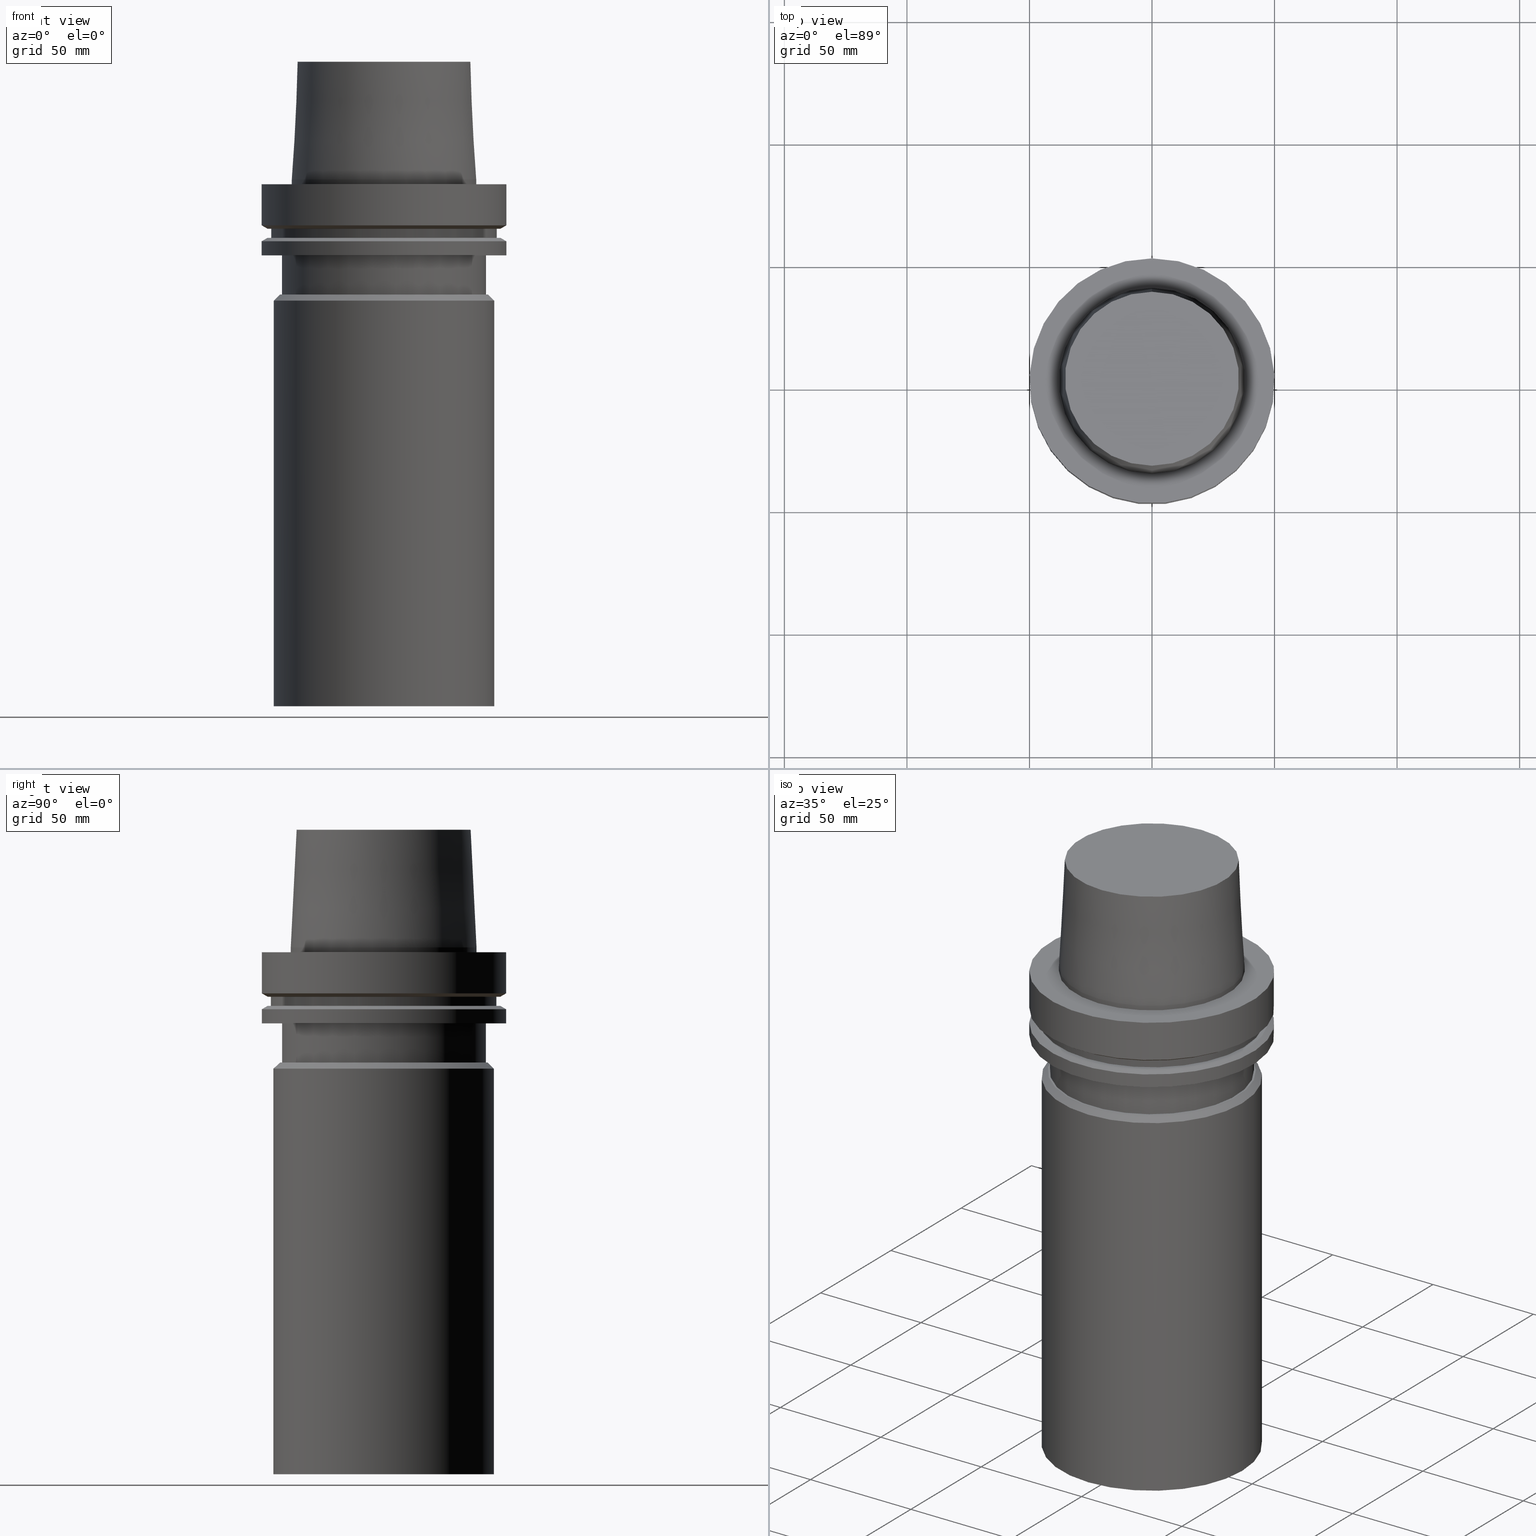
[diagram: canonical four-view strip — front | top / right | iso, engineering-drawing reading convention]
A machine part, canonical four-view strip (front | top / right | iso — engineering-drawing reading convention). The complete STEP part file that produces these views, byte-faithful:
ISO-10303-21;
HEADER;
FILE_DESCRIPTION((''),'1');
FILE_NAME('U:/Translate/00_BIG-HP\X2\FF71FF6FFF8CFF9F\X0\2013/\X2\30C030A630F330ED30FC30C930C730FC30BF\X0\/Vol9\X2\4EE5964D63B28F094E885B9A\X0\/20140930\X2\6DE18DEF628088533088308A\X0\/HSK-A100-CK/HSK-A100-CK7-213.stp','2014-09-30T09:25:11',(''),(''),'Spatial Interop R21 SP3','Kubotek KeyCreator 2011 V10.0.2 (22737)',' ');
FILE_SCHEMA(('automotive_design'));
ENDSEC;
DATA;
#1=MECHANICAL_DESIGN_GEOMETRIC_PRESENTATION_REPRESENTATION(' ',(#10,#11,#12,#13,#14,#15,#16,#17,#18,#19,#20,#21,#22,#23,#24,#25,#26,#27,#28,#29,#30,#31,#32,#33,#34,#35,#36,#37,#38,#39,#40,#41,#42,#43),#6);
#2=PRODUCT_DEFINITION_CONTEXT('',#44,'design');
#3=APPLICATION_PROTOCOL_DEFINITION('INTERNATIONAL STANDARD','automotive_design',1994,#44);
#4=PRODUCT_CATEGORY_RELATIONSHIP('NONE','NONE',#45,#46);
#5=SHAPE_DEFINITION_REPRESENTATION(#47,#48);
#6= (GEOMETRIC_REPRESENTATION_CONTEXT(3)GLOBAL_UNCERTAINTY_ASSIGNED_CONTEXT((#51))GLOBAL_UNIT_ASSIGNED_CONTEXT((#53,#54,#55))REPRESENTATION_CONTEXT('NONE','WORKSPACE'));
#10=STYLED_ITEM('',(#57),#58);
#11=STYLED_ITEM('',(#59),#60);
#12=STYLED_ITEM('',(#61,#62),#63);
#13=STYLED_ITEM('',(#64,#65),#66);
#14=STYLED_ITEM('',(#67,#68),#69);
#15=STYLED_ITEM('',(#70,#71),#72);
#16=STYLED_ITEM('',(#73,#74),#75);
#17=STYLED_ITEM('',(#76),#77);
#18=STYLED_ITEM('',(#78,#79),#80);
#19=STYLED_ITEM('',(#81,#82),#83);
#20=STYLED_ITEM('',(#84),#85);
#21=STYLED_ITEM('',(#86,#87),#88);
#22=STYLED_ITEM('',(#89),#90);
#23=STYLED_ITEM('',(#91),#92);
#24=STYLED_ITEM('',(#93),#94);
#25=STYLED_ITEM('',(#95),#96);
#26=STYLED_ITEM('',(#97,#98),#99);
#27=STYLED_ITEM('',(#100,#101),#102);
#28=STYLED_ITEM('',(#103),#104);
#29=STYLED_ITEM('',(#105,#106),#107);
#30=STYLED_ITEM('',(#108,#109),#110);
#31=STYLED_ITEM('',(#111,#112),#113);
#32=STYLED_ITEM('',(#114),#115);
#33=STYLED_ITEM('',(#116),#117);
#34=STYLED_ITEM('',(#118),#119);
#35=STYLED_ITEM('',(#120,#121),#122);
#36=STYLED_ITEM('',(#123),#124);
#37=STYLED_ITEM('',(#125),#126);
#38=STYLED_ITEM('',(#127,#128),#129);
#39=STYLED_ITEM('',(#130,#131),#132);
#40=STYLED_ITEM('',(#133,#134),#135);
#41=STYLED_ITEM('',(#136),#137);
#42=STYLED_ITEM('',(#138),#139);
#43=STYLED_ITEM('',(#140,#141),#142);
#44=APPLICATION_CONTEXT(' ');
#45=PRODUCT_CATEGORY('part','NONE');
#46=PRODUCT_RELATED_PRODUCT_CATEGORY('detail',' ',(#143));
#47=PRODUCT_DEFINITION_SHAPE('NONE','NONE',#144);
#48=ADVANCED_BREP_SHAPE_REPRESENTATION('Unnamed[1]',(#107,#145),#6);
#51=UNCERTAINTY_MEASURE_WITH_UNIT(LENGTH_MEASURE(1.0E-006),#53,'','');
#53= (CONVERSION_BASED_UNIT('MILLIMETRE',#148)LENGTH_UNIT()NAMED_UNIT(#151));
#54= (NAMED_UNIT(#153)PLANE_ANGLE_UNIT()SI_UNIT($,.RADIAN.));
#55= (NAMED_UNIT(#153)SOLID_ANGLE_UNIT()SI_UNIT($,.STERADIAN.));
#57=PRESENTATION_STYLE_ASSIGNMENT((#159));
#58=EDGE_CURVE('Unnamed[1]',#160,#160,#161,.T.);
#59=PRESENTATION_STYLE_ASSIGNMENT((#162));
#60=EDGE_CURVE('Unnamed[1]',#163,#163,#164,.T.);
#61=PRESENTATION_STYLE_ASSIGNMENT((#165));
#62=PRESENTATION_STYLE_ASSIGNMENT((#166));
#63=ADVANCED_FACE('Unnamed[1]',(#167,#168),#169,.T.);
#64=PRESENTATION_STYLE_ASSIGNMENT((#170));
#65=PRESENTATION_STYLE_ASSIGNMENT((#171));
#66=ADVANCED_FACE('Unnamed[1]',(#172,#173),#174,.T.);
#67=PRESENTATION_STYLE_ASSIGNMENT((#175));
#68=PRESENTATION_STYLE_ASSIGNMENT((#176));
#69=ADVANCED_FACE('Unnamed[1]',(#177,#178),#179,.T.);
#70=PRESENTATION_STYLE_ASSIGNMENT((#180));
#71=PRESENTATION_STYLE_ASSIGNMENT((#181));
#72=ADVANCED_FACE('Unnamed[1]',(#182,#183),#184,.T.);
#73=PRESENTATION_STYLE_ASSIGNMENT((#185));
#74=PRESENTATION_STYLE_ASSIGNMENT((#186));
#75=ADVANCED_FACE('Unnamed[1]',(#187,#188),#189,.T.);
#76=PRESENTATION_STYLE_ASSIGNMENT((#190));
#77=EDGE_CURVE('Unnamed[1]',#191,#191,#192,.T.);
#78=PRESENTATION_STYLE_ASSIGNMENT((#193));
#79=PRESENTATION_STYLE_ASSIGNMENT((#194));
#80=ADVANCED_FACE('Unnamed[1]',(#195),#196,.T.);
#81=PRESENTATION_STYLE_ASSIGNMENT((#197));
#82=PRESENTATION_STYLE_ASSIGNMENT((#198));
#83=ADVANCED_FACE('Unnamed[1]',(#199,#200),#201,.T.);
#84=PRESENTATION_STYLE_ASSIGNMENT((#202));
#85=EDGE_CURVE('Unnamed[1]',#203,#203,#204,.T.);
#86=PRESENTATION_STYLE_ASSIGNMENT((#205));
#87=PRESENTATION_STYLE_ASSIGNMENT((#206));
#88=ADVANCED_FACE('Unnamed[1]',(#207),#208,.T.);
#89=PRESENTATION_STYLE_ASSIGNMENT((#209));
#90=EDGE_CURVE('Unnamed[1]',#210,#210,#211,.T.);
#91=PRESENTATION_STYLE_ASSIGNMENT((#212));
#92=EDGE_CURVE('Unnamed[1]',#213,#213,#214,.T.);
#93=PRESENTATION_STYLE_ASSIGNMENT((#215));
#94=EDGE_CURVE('Unnamed[1]',#216,#216,#217,.T.);
#95=PRESENTATION_STYLE_ASSIGNMENT((#218));
#96=EDGE_CURVE('Unnamed[1]',#219,#219,#220,.T.);
#97=PRESENTATION_STYLE_ASSIGNMENT((#221));
#98=PRESENTATION_STYLE_ASSIGNMENT((#222));
#99=ADVANCED_FACE('Unnamed[1]',(#223,#224),#225,.T.);
#100=PRESENTATION_STYLE_ASSIGNMENT((#226));
#101=PRESENTATION_STYLE_ASSIGNMENT((#227));
#102=ADVANCED_FACE('Unnamed[1]',(#228,#229),#230,.T.);
#103=PRESENTATION_STYLE_ASSIGNMENT((#231));
#104=EDGE_CURVE('Unnamed[1]',#232,#232,#233,.T.);
#105=PRESENTATION_STYLE_ASSIGNMENT((#234));
#106=PRESENTATION_STYLE_ASSIGNMENT((#235));
#107=MANIFOLD_SOLID_BREP('Unnamed[1]',#236);
#108=PRESENTATION_STYLE_ASSIGNMENT((#237));
#109=PRESENTATION_STYLE_ASSIGNMENT((#238));
#110=ADVANCED_FACE('Unnamed[1]',(#239,#240),#241,.T.);
#111=PRESENTATION_STYLE_ASSIGNMENT((#242));
#112=PRESENTATION_STYLE_ASSIGNMENT((#243));
#113=ADVANCED_FACE('Unnamed[1]',(#244,#245),#246,.T.);
#114=PRESENTATION_STYLE_ASSIGNMENT((#247));
#115=EDGE_CURVE('Unnamed[1]',#248,#248,#249,.T.);
#116=PRESENTATION_STYLE_ASSIGNMENT((#250));
#117=EDGE_CURVE('Unnamed[1]',#251,#251,#252,.T.);
#118=PRESENTATION_STYLE_ASSIGNMENT((#253));
#119=EDGE_CURVE('Unnamed[1]',#254,#254,#255,.T.);
#120=PRESENTATION_STYLE_ASSIGNMENT((#256));
#121=PRESENTATION_STYLE_ASSIGNMENT((#257));
#122=ADVANCED_FACE('Unnamed[1]',(#258,#259),#260,.T.);
#123=PRESENTATION_STYLE_ASSIGNMENT((#261));
#124=EDGE_CURVE('Unnamed[1]',#262,#262,#263,.T.);
#125=PRESENTATION_STYLE_ASSIGNMENT((#264));
#126=EDGE_CURVE('Unnamed[1]',#265,#265,#266,.T.);
#127=PRESENTATION_STYLE_ASSIGNMENT((#267));
#128=PRESENTATION_STYLE_ASSIGNMENT((#268));
#129=ADVANCED_FACE('Unnamed[1]',(#269,#270),#271,.T.);
#130=PRESENTATION_STYLE_ASSIGNMENT((#272));
#131=PRESENTATION_STYLE_ASSIGNMENT((#273));
#132=ADVANCED_FACE('Unnamed[1]',(#274,#275),#276,.T.);
#133=PRESENTATION_STYLE_ASSIGNMENT((#277));
#134=PRESENTATION_STYLE_ASSIGNMENT((#278));
#135=ADVANCED_FACE('Unnamed[1]',(#279,#280),#281,.T.);
#136=PRESENTATION_STYLE_ASSIGNMENT((#282));
#137=EDGE_CURVE('Unnamed[1]',#283,#283,#284,.T.);
#138=PRESENTATION_STYLE_ASSIGNMENT((#285));
#139=EDGE_CURVE('Unnamed[1]',#286,#286,#287,.T.);
#140=PRESENTATION_STYLE_ASSIGNMENT((#288));
#141=PRESENTATION_STYLE_ASSIGNMENT((#289));
#142=ADVANCED_FACE('Unnamed[1]',(#290,#291),#292,.T.);
#143=PRODUCT('Unnamed[1]','Unnamed[1]','PART-Unnamed[1]-DESC',(#293));
#144=PRODUCT_DEFINITION('NONE','NONE',#294,#2);
#145=AXIS2_PLACEMENT_3D('',#295,#296,#297);
#148=LENGTH_MEASURE_WITH_UNIT(LENGTH_MEASURE(1.0),#298);
#151=DIMENSIONAL_EXPONENTS(1.0,0.0,0.0,0.0,0.0,0.0,0.0);
#153=DIMENSIONAL_EXPONENTS(0.0,0.0,0.0,0.0,0.0,0.0,0.0);
#159=CURVE_STYLE('',#299,POSITIVE_LENGTH_MEASURE(1000.0),#300);
#160=VERTEX_POINT('',#301);
#161=CIRCLE('',#302,37.9);
#162=CURVE_STYLE('',#303,POSITIVE_LENGTH_MEASURE(1000.0),#304);
#163=VERTEX_POINT('',#305);
#164=CIRCLE('',#306,41.7010315672632);
#165=SURFACE_STYLE_USAGE(.BOTH.,#307);
#166=CURVE_STYLE('',#308,POSITIVE_LENGTH_MEASURE(1000.0),#309);
#167=FACE_BOUND('',#310,.T.);
#168=FACE_BOUND('',#311,.T.);
#169=CYLINDRICAL_SURFACE('',#312,50.0);
#170=SURFACE_STYLE_USAGE(.BOTH.,#313);
#171=CURVE_STYLE('',#314,POSITIVE_LENGTH_MEASURE(1000.0),#315);
#172=FACE_BOUND('',#316,.T.);
#173=FACE_BOUND('',#317,.T.);
#174=CYLINDRICAL_SURFACE('',#318,50.0);
#175=SURFACE_STYLE_USAGE(.BOTH.,#319);
#176=CURVE_STYLE('',#320,POSITIVE_LENGTH_MEASURE(1000.0),#321);
#177=FACE_BOUND('',#322,.T.);
#178=FACE_BOUND('',#323,.T.);
#179=CYLINDRICAL_SURFACE('',#324,45.0);
#180=SURFACE_STYLE_USAGE(.BOTH.,#325);
#181=CURVE_STYLE('',#326,POSITIVE_LENGTH_MEASURE(1000.0),#327);
#182=FACE_BOUND('',#328,.T.);
#183=FACE_OUTER_BOUND('',#329,.T.);
#184=PLANE('',#330);
#185=SURFACE_STYLE_USAGE(.BOTH.,#331);
#186=CURVE_STYLE('',#332,POSITIVE_LENGTH_MEASURE(1000.0),#333);
#187=FACE_BOUND('',#334,.T.);
#188=FACE_BOUND('',#335,.T.);
#189=CONICAL_SURFACE('',#336,43.75,0.785398163397433);
#190=CURVE_STYLE('',#337,POSITIVE_LENGTH_MEASURE(1000.0),#338);
#191=VERTEX_POINT('',#339);
#192=CIRCLE('',#340,46.0);
#193=SURFACE_STYLE_USAGE(.BOTH.,#341);
#194=CURVE_STYLE('',#342,POSITIVE_LENGTH_MEASURE(1000.0),#343);
#195=FACE_OUTER_BOUND('',#344,.T.);
#196=PLANE('',#345);
#197=SURFACE_STYLE_USAGE(.BOTH.,#346);
#198=CURVE_STYLE('',#347,POSITIVE_LENGTH_MEASURE(1000.0),#348);
#199=FACE_BOUND('',#349,.T.);
#200=FACE_BOUND('',#350,.T.);
#201=CYLINDRICAL_SURFACE('',#351,41.7010315672632);
#202=CURVE_STYLE('',#352,POSITIVE_LENGTH_MEASURE(1000.0),#353);
#203=VERTEX_POINT('',#354);
#204=CIRCLE('',#355,45.0);
#205=SURFACE_STYLE_USAGE(.BOTH.,#356);
#206=CURVE_STYLE('',#357,POSITIVE_LENGTH_MEASURE(1000.0),#358);
#207=FACE_OUTER_BOUND('',#359,.T.);
#208=PLANE('',#360);
#209=CURVE_STYLE('',#361,POSITIVE_LENGTH_MEASURE(1000.0),#362);
#210=VERTEX_POINT('',#363);
#211=CIRCLE('',#364,45.0);
#212=CURVE_STYLE('',#365,POSITIVE_LENGTH_MEASURE(1000.0),#366);
#213=VERTEX_POINT('',#367);
#214=CIRCLE('',#368,37.9);
#215=CURVE_STYLE('',#369,POSITIVE_LENGTH_MEASURE(1000.0),#370);
#216=VERTEX_POINT('',#371);
#217=CIRCLE('',#372,47.62259526);
#218=CURVE_STYLE('',#373,POSITIVE_LENGTH_MEASURE(1000.0),#374);
#219=VERTEX_POINT('',#375);
#220=CIRCLE('',#376,50.0);
#221=SURFACE_STYLE_USAGE(.BOTH.,#377);
#222=CURVE_STYLE('',#378,POSITIVE_LENGTH_MEASURE(1000.0),#379);
#223=FACE_OUTER_BOUND('',#380,.T.);
#224=FACE_BOUND('',#381,.T.);
#225=PLANE('',#382);
#226=SURFACE_STYLE_USAGE(.BOTH.,#383);
#227=CURVE_STYLE('',#384,POSITIVE_LENGTH_MEASURE(1000.0),#385);
#228=FACE_OUTER_BOUND('',#386,.T.);
#229=FACE_BOUND('',#387,.T.);
#230=PLANE('',#388);
#231=CURVE_STYLE('',#389,POSITIVE_LENGTH_MEASURE(1000.0),#390);
#232=VERTEX_POINT('',#391);
#233=CIRCLE('',#392,50.0);
#234=SURFACE_STYLE_USAGE(.BOTH.,#393);
#235=CURVE_STYLE('',#394,POSITIVE_LENGTH_MEASURE(1000.0),#395);
#236=CLOSED_SHELL('',(#88,#142,#113,#122,#63,#129,#135,#110,#102,#132,#66,#72,#83,#99,#75,#69,#80));
#237=SURFACE_STYLE_USAGE(.BOTH.,#396);
#238=CURVE_STYLE('',#397,POSITIVE_LENGTH_MEASURE(1000.0),#398);
#239=FACE_BOUND('',#399,.T.);
#240=FACE_BOUND('',#400,.T.);
#241=CYLINDRICAL_SURFACE('',#401,46.0);
#242=SURFACE_STYLE_USAGE(.BOTH.,#402);
#243=CURVE_STYLE('',#403,POSITIVE_LENGTH_MEASURE(1000.0),#404);
#244=FACE_BOUND('',#405,.T.);
#245=FACE_BOUND('',#406,.T.);
#246=CYLINDRICAL_SURFACE('',#407,37.9);
#247=CURVE_STYLE('',#408,POSITIVE_LENGTH_MEASURE(1000.0),#409);
#248=VERTEX_POINT('',#410);
#249=CIRCLE('',#411,46.0);
#250=CURVE_STYLE('',#412,POSITIVE_LENGTH_MEASURE(1000.0),#413);
#251=VERTEX_POINT('',#414);
#252=CIRCLE('',#415,47.62259526);
#253=CURVE_STYLE('',#416,POSITIVE_LENGTH_MEASURE(1000.0),#417);
#254=VERTEX_POINT('',#418);
#255=CIRCLE('',#419,41.7010315672632);
#256=SURFACE_STYLE_USAGE(.BOTH.,#420);
#257=CURVE_STYLE('',#421,POSITIVE_LENGTH_MEASURE(1000.0),#422);
#258=FACE_OUTER_BOUND('',#423,.T.);
#259=FACE_BOUND('',#424,.T.);
#260=PLANE('',#425);
#261=CURVE_STYLE('',#426,POSITIVE_LENGTH_MEASURE(1000.0),#427);
#262=VERTEX_POINT('',#428);
#263=CIRCLE('',#429,42.5);
#264=CURVE_STYLE('',#430,POSITIVE_LENGTH_MEASURE(1000.0),#431);
#265=VERTEX_POINT('',#432);
#266=CIRCLE('',#433,35.5000000015618);
#267=SURFACE_STYLE_USAGE(.BOTH.,#434);
#268=CURVE_STYLE('',#435,POSITIVE_LENGTH_MEASURE(1000.0),#436);
#269=FACE_BOUND('',#437,.T.);
#270=FACE_BOUND('',#438,.T.);
#271=CONICAL_SURFACE('',#439,48.81129763,1.04719755328239);
#272=SURFACE_STYLE_USAGE(.BOTH.,#440);
#273=CURVE_STYLE('',#441,POSITIVE_LENGTH_MEASURE(1000.0),#442);
#274=FACE_BOUND('',#443,.T.);
#275=FACE_BOUND('',#444,.T.);
#276=CONICAL_SURFACE('',#445,48.81129763,1.04719755328239);
#277=SURFACE_STYLE_USAGE(.BOTH.,#446);
#278=CURVE_STYLE('',#447,POSITIVE_LENGTH_MEASURE(1000.0),#448);
#279=FACE_BOUND('',#449,.T.);
#280=FACE_OUTER_BOUND('',#450,.T.);
#281=PLANE('',#451);
#282=CURVE_STYLE('',#452,POSITIVE_LENGTH_MEASURE(1000.0),#453);
#283=VERTEX_POINT('',#454);
#284=CIRCLE('',#455,50.0);
#285=CURVE_STYLE('',#456,POSITIVE_LENGTH_MEASURE(1000.0),#457);
#286=VERTEX_POINT('',#458);
#287=CIRCLE('',#459,50.0);
#288=SURFACE_STYLE_USAGE(.BOTH.,#460);
#289=CURVE_STYLE('',#461,POSITIVE_LENGTH_MEASURE(1000.0),#462);
#290=FACE_BOUND('',#463,.T.);
#291=FACE_BOUND('',#464,.T.);
#292=CONICAL_SURFACE('',#465,36.7000000007809,0.0499583956894865);
#293=PRODUCT_CONTEXT('',#44,'mechanical');
#294=PRODUCT_DEFINITION_FORMATION_WITH_SPECIFIED_SOURCE(' ','NONE',#143,.NOT_KNOWN.);
#295=CARTESIAN_POINT('',(0.0,0.0,0.0));
#296=DIRECTION('',(0.0,0.0,1.0));
#297=DIRECTION('',(1.0,0.0,0.0));
#298= (NAMED_UNIT(#151)LENGTH_UNIT()SI_UNIT(.MILLI.,.METRE.));
#299=DRAUGHTING_PRE_DEFINED_CURVE_FONT('continuous');
#300=COLOUR_RGB('',0.0,1.0,0.0);
#301=CARTESIAN_POINT('',(-4.67153567310568E-031,37.9,4.64141136876847E-015));
#302=AXIS2_PLACEMENT_3D('',#467,#468,#469);
#303=DRAUGHTING_PRE_DEFINED_CURVE_FONT('continuous');
#304=COLOUR_RGB('',0.0,1.0,0.0);
#305=CARTESIAN_POINT('',(1.77573785876366E-015,41.7010315672632,-29.0));
#306=AXIS2_PLACEMENT_3D('',#470,#471,#472);
#307=SURFACE_SIDE_STYLE('',(#473));
#308=DRAUGHTING_PRE_DEFINED_CURVE_FONT('continuous');
#309=COLOUR_RGB('',0.0,1.0,0.0);
#310=EDGE_LOOP('',(#474));
#311=EDGE_LOOP('',(#475));
#312=AXIS2_PLACEMENT_3D('',#476,#477,#478);
#313=SURFACE_SIDE_STYLE('',(#479));
#314=DRAUGHTING_PRE_DEFINED_CURVE_FONT('continuous');
#315=COLOUR_RGB('',0.0,1.0,0.0);
#316=EDGE_LOOP('',(#480));
#317=EDGE_LOOP('',(#481));
#318=AXIS2_PLACEMENT_3D('',#482,#483,#484);
#319=SURFACE_SIDE_STYLE('',(#485));
#320=DRAUGHTING_PRE_DEFINED_CURVE_FONT('continuous');
#321=COLOUR_RGB('',0.0,1.0,0.0);
#322=EDGE_LOOP('',(#486));
#323=EDGE_LOOP('',(#487));
#324=AXIS2_PLACEMENT_3D('',#488,#489,#490);
#325=SURFACE_SIDE_STYLE('',(#491));
#326=DRAUGHTING_PRE_DEFINED_CURVE_FONT('continuous');
#327=COLOUR_RGB('',0.0,1.0,0.0);
#328=EDGE_LOOP('',(#492));
#329=EDGE_LOOP('',(#493));
#330=AXIS2_PLACEMENT_3D('',#494,#495,#496);
#331=SURFACE_SIDE_STYLE('',(#497));
#332=DRAUGHTING_PRE_DEFINED_CURVE_FONT('continuous');
#333=COLOUR_RGB('',0.0,1.0,0.0);
#334=EDGE_LOOP('',(#498));
#335=EDGE_LOOP('',(#499));
#336=AXIS2_PLACEMENT_3D('',#500,#501,#502);
#337=DRAUGHTING_PRE_DEFINED_CURVE_FONT('continuous');
#338=COLOUR_RGB('',0.0,1.0,0.0);
#339=CARTESIAN_POINT('',(1.10983616172729E-015,46.0,-18.125));
#340=AXIS2_PLACEMENT_3D('',#503,#504,#505);
#341=SURFACE_SIDE_STYLE('',(#506));
#342=DRAUGHTING_PRE_DEFINED_CURVE_FONT('continuous');
#343=COLOUR_RGB('',0.0,1.0,0.0);
#344=EDGE_LOOP('',(#507));
#345=AXIS2_PLACEMENT_3D('',#508,#509,#510);
#346=SURFACE_SIDE_STYLE('',(#511));
#347=DRAUGHTING_PRE_DEFINED_CURVE_FONT('continuous');
#348=COLOUR_RGB('',0.0,1.0,0.0);
#349=EDGE_LOOP('',(#512));
#350=EDGE_LOOP('',(#513));
#351=AXIS2_PLACEMENT_3D('',#514,#515,#516);
#352=DRAUGHTING_PRE_DEFINED_CURVE_FONT('continuous');
#353=COLOUR_RGB('',0.0,1.0,0.0);
#354=CARTESIAN_POINT('',(1.30424884109193E-014,45.0,-213.0));
#355=AXIS2_PLACEMENT_3D('',#517,#518,#519);
#356=SURFACE_SIDE_STYLE('',(#520));
#357=DRAUGHTING_PRE_DEFINED_CURVE_FONT('continuous');
#358=COLOUR_RGB('',0.0,1.0,0.0);
#359=EDGE_LOOP('',(#521));
#360=AXIS2_PLACEMENT_3D('',#522,#523,#524);
#361=DRAUGHTING_PRE_DEFINED_CURVE_FONT('continuous');
#362=COLOUR_RGB('',0.0,1.0,0.0);
#363=CARTESIAN_POINT('',(2.90853614797497E-015,45.0,-47.5000000000001));
#364=AXIS2_PLACEMENT_3D('',#525,#526,#527);
#365=DRAUGHTING_PRE_DEFINED_CURVE_FONT('continuous');
#366=COLOUR_RGB('',0.0,1.0,0.0);
#367=CARTESIAN_POINT('',(-1.22464679914736E-016,37.9,2.0));
#368=AXIS2_PLACEMENT_3D('',#528,#529,#530);
#369=DRAUGHTING_PRE_DEFINED_CURVE_FONT('continuous');
#370=COLOUR_RGB('',0.0,1.0,0.0);
#371=CARTESIAN_POINT('',(1.33945743656742E-015,47.62259526,-21.875));
#372=AXIS2_PLACEMENT_3D('',#531,#532,#533);
#373=DRAUGHTING_PRE_DEFINED_CURVE_FONT('continuous');
#374=COLOUR_RGB('',0.0,1.0,0.0);
#375=CARTESIAN_POINT('',(-6.16297582203915E-031,50.0,6.12323399573676E-015));
#376=AXIS2_PLACEMENT_3D('',#534,#535,#536);
#377=SURFACE_SIDE_STYLE('',(#537));
#378=DRAUGHTING_PRE_DEFINED_CURVE_FONT('continuous');
#379=COLOUR_RGB('',0.0,1.0,0.0);
#380=EDGE_LOOP('',(#538));
#381=EDGE_LOOP('',(#539));
#382=AXIS2_PLACEMENT_3D('',#540,#541,#542);
#383=SURFACE_SIDE_STYLE('',(#543));
#384=DRAUGHTING_PRE_DEFINED_CURVE_FONT('continuous');
#385=COLOUR_RGB('',0.0,1.0,0.0);
#386=EDGE_LOOP('',(#544));
#387=EDGE_LOOP('',(#545));
#388=AXIS2_PLACEMENT_3D('',#546,#547,#548);
#389=DRAUGHTING_PRE_DEFINED_CURVE_FONT('continuous');
#390=COLOUR_RGB('',0.0,1.0,0.0);
#391=CARTESIAN_POINT('',(1.42350465615161E-015,50.0,-23.24759526));
#392=AXIS2_PLACEMENT_3D('',#549,#550,#551);
#393=SURFACE_SIDE_STYLE('',(#552));
#394=DRAUGHTING_PRE_DEFINED_CURVE_FONT('continuous');
#395=COLOUR_RGB('',0.0,1.0,0.0);
#396=SURFACE_SIDE_STYLE('',(#553));
#397=DRAUGHTING_PRE_DEFINED_CURVE_FONT('continuous');
#398=COLOUR_RGB('',0.0,1.0,0.0);
#399=EDGE_LOOP('',(#554));
#400=EDGE_LOOP('',(#555));
#401=AXIS2_PLACEMENT_3D('',#556,#557,#558);
#402=SURFACE_SIDE_STYLE('',(#559));
#403=DRAUGHTING_PRE_DEFINED_CURVE_FONT('continuous');
#404=COLOUR_RGB('',0.0,1.0,0.0);
#405=EDGE_LOOP('',(#560));
#406=EDGE_LOOP('',(#561));
#407=AXIS2_PLACEMENT_3D('',#562,#563,#564);
#408=DRAUGHTING_PRE_DEFINED_CURVE_FONT('continuous');
#409=COLOUR_RGB('',0.0,1.0,0.0);
#410=CARTESIAN_POINT('',(1.33945743656742E-015,46.0,-21.875));
#411=AXIS2_PLACEMENT_3D('',#565,#566,#567);
#412=DRAUGHTING_PRE_DEFINED_CURVE_FONT('continuous');
#413=COLOUR_RGB('',0.0,1.0,0.0);
#414=CARTESIAN_POINT('',(1.10983616172729E-015,47.62259526,-18.125));
#415=AXIS2_PLACEMENT_3D('',#568,#569,#570);
#416=DRAUGHTING_PRE_DEFINED_CURVE_FONT('continuous');
#417=COLOUR_RGB('',0.0,1.0,0.0);
#418=CARTESIAN_POINT('',(2.75545529808154E-015,41.7010315672632,-45.0));
#419=AXIS2_PLACEMENT_3D('',#571,#572,#573);
#420=SURFACE_SIDE_STYLE('',(#574));
#421=DRAUGHTING_PRE_DEFINED_CURVE_FONT('continuous');
#422=COLOUR_RGB('',0.0,1.0,0.0);
#423=EDGE_LOOP('',(#575));
#424=EDGE_LOOP('',(#576));
#425=AXIS2_PLACEMENT_3D('',#577,#578,#579);
#426=DRAUGHTING_PRE_DEFINED_CURVE_FONT('continuous');
#427=COLOUR_RGB('',0.0,1.0,0.0);
#428=CARTESIAN_POINT('',(2.75545529808154E-015,42.5,-45.0));
#429=AXIS2_PLACEMENT_3D('',#580,#581,#582);
#430=DRAUGHTING_PRE_DEFINED_CURVE_FONT('continuous');
#431=COLOUR_RGB('',0.0,1.0,0.0);
#432=CARTESIAN_POINT('',(-3.06161699786838E-015,35.5000000015618,50.0));
#433=AXIS2_PLACEMENT_3D('',#583,#584,#585);
#434=SURFACE_SIDE_STYLE('',(#586));
#435=DRAUGHTING_PRE_DEFINED_CURVE_FONT('continuous');
#436=COLOUR_RGB('',0.0,1.0,0.0);
#437=EDGE_LOOP('',(#587));
#438=EDGE_LOOP('',(#588));
#439=AXIS2_PLACEMENT_3D('',#589,#590,#591);
#440=SURFACE_SIDE_STYLE('',(#592));
#441=DRAUGHTING_PRE_DEFINED_CURVE_FONT('continuous');
#442=COLOUR_RGB('',0.0,1.0,0.0);
#443=EDGE_LOOP('',(#593));
#444=EDGE_LOOP('',(#594));
#445=AXIS2_PLACEMENT_3D('',#595,#596,#597);
#446=SURFACE_SIDE_STYLE('',(#598));
#447=DRAUGHTING_PRE_DEFINED_CURVE_FONT('continuous');
#448=COLOUR_RGB('',0.0,1.0,0.0);
#449=EDGE_LOOP('',(#599));
#450=EDGE_LOOP('',(#600));
#451=AXIS2_PLACEMENT_3D('',#601,#602,#603);
#452=DRAUGHTING_PRE_DEFINED_CURVE_FONT('continuous');
#453=COLOUR_RGB('',0.0,1.0,0.0);
#454=CARTESIAN_POINT('',(1.0257889421431E-015,50.0,-16.75240474));
#455=AXIS2_PLACEMENT_3D('',#604,#605,#606);
#456=DRAUGHTING_PRE_DEFINED_CURVE_FONT('continuous');
#457=COLOUR_RGB('',0.0,1.0,0.0);
#458=CARTESIAN_POINT('',(1.77573785876366E-015,50.0,-29.0));
#459=AXIS2_PLACEMENT_3D('',#607,#608,#609);
#460=SURFACE_SIDE_STYLE('',(#610));
#461=DRAUGHTING_PRE_DEFINED_CURVE_FONT('continuous');
#462=COLOUR_RGB('',0.0,1.0,0.0);
#463=EDGE_LOOP('',(#611));
#464=EDGE_LOOP('',(#612));
#465=AXIS2_PLACEMENT_3D('',#613,#614,#615);
#467=CARTESIAN_POINT('',(0.0,0.0,0.0));
#468=DIRECTION('',(6.12323399573677E-017,1.22464679914735E-016,-1.0));
#469=DIRECTION('',(-1.23259516440783E-032,1.0,1.22464679914735E-016));
#470=CARTESIAN_POINT('',(1.77573785876366E-015,3.55147571752732E-015,-29.0));
#471=DIRECTION('',(6.12323399573677E-017,1.22464679914735E-016,-1.0));
#472=DIRECTION('',(-1.23259516440783E-032,1.0,1.22464679914735E-016));
#473=SURFACE_STYLE_FILL_AREA(#616);
#474=ORIENTED_EDGE('',*,*,#137,.F.);
#475=ORIENTED_EDGE('',*,*,#96,.T.);
#476=CARTESIAN_POINT('',(5.12894471071548E-016,1.0257889421431E-015,-8.37620236999999));
#477=DIRECTION('',(6.12323399573677E-017,1.22464679914735E-016,-1.0));
#478=DIRECTION('',(-1.23259516440783E-032,1.0,1.22464679914735E-016));
#479=SURFACE_STYLE_FILL_AREA(#617);
#480=ORIENTED_EDGE('',*,*,#139,.F.);
#481=ORIENTED_EDGE('',*,*,#104,.T.);
#482=CARTESIAN_POINT('',(1.59962125745764E-015,3.19924251491527E-015,-26.12379763));
#483=DIRECTION('',(6.12323399573677E-017,1.22464679914735E-016,-1.0));
#484=DIRECTION('',(-1.23259516440783E-032,1.0,1.22464679914735E-016));
#485=SURFACE_STYLE_FILL_AREA(#618);
#486=ORIENTED_EDGE('',*,*,#85,.F.);
#487=ORIENTED_EDGE('',*,*,#90,.T.);
#488=CARTESIAN_POINT('',(7.97551227944714E-015,1.59510245588943E-014,-130.25));
#489=DIRECTION('',(6.12323399573677E-017,1.22464679914735E-016,-1.0));
#490=DIRECTION('',(-1.23259516440783E-032,1.0,1.22464679914735E-016));
#491=SURFACE_STYLE_FILL_AREA(#619);
#492=ORIENTED_EDGE('',*,*,#60,.F.);
#493=ORIENTED_EDGE('',*,*,#139,.T.);
#494=CARTESIAN_POINT('',(1.77573785876366E-015,45.8505157836316,-29.0));
#495=DIRECTION('',(6.12323399573677E-017,1.40673767393631E-015,-1.0));
#496=DIRECTION('',(-9.09649922120739E-032,1.0,1.40673767393631E-015));
#497=SURFACE_STYLE_FILL_AREA(#620);
#498=ORIENTED_EDGE('',*,*,#90,.F.);
#499=ORIENTED_EDGE('',*,*,#124,.T.);
#500=CARTESIAN_POINT('',(2.83199572302826E-015,5.66399144605651E-015,-46.25));
#501=DIRECTION('',(6.12323399573677E-017,1.22464679914735E-016,-1.0));
#502=DIRECTION('',(-1.23259516440783E-032,1.0,1.22464679914735E-016));
#503=CARTESIAN_POINT('',(1.10983616172729E-015,2.21967232345458E-015,-18.125));
#504=DIRECTION('',(6.12323399573677E-017,1.22464679914735E-016,-1.0));
#505=DIRECTION('',(-1.23259516440783E-032,1.0,1.22464679914735E-016));
#506=SURFACE_STYLE_FILL_AREA(#621);
#507=ORIENTED_EDGE('',*,*,#85,.T.);
#508=CARTESIAN_POINT('',(1.30424884109193E-014,22.5,-213.0));
#509=DIRECTION('',(6.12323399573677E-017,1.22464679914735E-016,-1.0));
#510=DIRECTION('',(-1.23259516440783E-032,1.0,1.22464679914735E-016));
#511=SURFACE_STYLE_FILL_AREA(#622);
#512=ORIENTED_EDGE('',*,*,#119,.F.);
#513=ORIENTED_EDGE('',*,*,#60,.T.);
#514=CARTESIAN_POINT('',(2.2655965784226E-015,4.53119315684521E-015,-37.0));
#515=DIRECTION('',(6.12323399573677E-017,1.22464679914735E-016,-1.0));
#516=DIRECTION('',(-1.23259516440783E-032,1.0,1.22464679914735E-016));
#517=CARTESIAN_POINT('',(1.30424884109193E-014,2.60849768218386E-014,-213.0));
#518=DIRECTION('',(6.12323399573677E-017,1.22464679914735E-016,-1.0));
#519=DIRECTION('',(-1.23259516440783E-032,1.0,1.22464679914735E-016));
#520=SURFACE_STYLE_FILL_AREA(#623);
#521=ORIENTED_EDGE('',*,*,#126,.F.);
#522=CARTESIAN_POINT('',(-3.06161699786838E-015,17.7500000007809,50.0));
#523=DIRECTION('',(-6.12323399573677E-017,-1.22464679914735E-016,1.0));
#524=DIRECTION('',(1.23259516440783E-032,-1.0,-1.22464679914735E-016));
#525=CARTESIAN_POINT('',(2.90853614797497E-015,5.81707229594993E-015,-47.5000000000001));
#526=DIRECTION('',(6.12323399573677E-017,1.22464679914735E-016,-1.0));
#527=DIRECTION('',(-1.23259516440783E-032,1.0,1.22464679914735E-016));
#528=CARTESIAN_POINT('',(-1.22464679914735E-016,-2.44929359829471E-016,2.0));
#529=DIRECTION('',(6.12323399573677E-017,1.22464679914735E-016,-1.0));
#530=DIRECTION('',(-1.23259516440783E-032,1.0,1.22464679914735E-016));
#531=CARTESIAN_POINT('',(1.33945743656742E-015,2.67891487313483E-015,-21.875));
#532=DIRECTION('',(6.12323399573677E-017,1.22464679914735E-016,-1.0));
#533=DIRECTION('',(-1.23259516440783E-032,1.0,1.22464679914735E-016));
#534=CARTESIAN_POINT('',(0.0,0.0,0.0));
#535=DIRECTION('',(6.12323399573677E-017,1.22464679914735E-016,-1.0));
#536=DIRECTION('',(-1.23259516440783E-032,1.0,1.22464679914735E-016));
#537=SURFACE_STYLE_FILL_AREA(#624);
#538=ORIENTED_EDGE('',*,*,#124,.F.);
#539=ORIENTED_EDGE('',*,*,#119,.T.);
#540=CARTESIAN_POINT('',(2.75545529808154E-015,42.1005157836316,-45.0));
#541=DIRECTION('',(-6.12323399573677E-017,3.54505420445754E-014,1.0));
#542=DIRECTION('',(-2.16589248941562E-030,-1.0,3.54505420445754E-014));
#543=SURFACE_STYLE_FILL_AREA(#625);
#544=ORIENTED_EDGE('',*,*,#94,.F.);
#545=ORIENTED_EDGE('',*,*,#115,.T.);
#546=CARTESIAN_POINT('',(1.33945743656742E-015,46.81129763,-21.875));
#547=DIRECTION('',(-6.12323399573677E-017,-1.22464679914735E-016,1.0));
#548=DIRECTION('',(1.23259516440783E-032,-1.0,-1.22464679914735E-016));
#549=CARTESIAN_POINT('',(1.42350465615161E-015,2.84700931230322E-015,-23.24759526));
#550=DIRECTION('',(6.12323399573677E-017,1.22464679914735E-016,-1.0));
#551=DIRECTION('',(-1.23259516440783E-032,1.0,1.22464679914735E-016));
#552=SURFACE_STYLE_FILL_AREA(#626);
#553=SURFACE_STYLE_FILL_AREA(#627);
#554=ORIENTED_EDGE('',*,*,#115,.F.);
#555=ORIENTED_EDGE('',*,*,#77,.T.);
#556=CARTESIAN_POINT('',(1.22464679914735E-015,2.44929359829471E-015,-20.0));
#557=DIRECTION('',(6.12323399573677E-017,1.22464679914735E-016,-1.0));
#558=DIRECTION('',(-1.23259516440783E-032,1.0,1.22464679914735E-016));
#559=SURFACE_STYLE_FILL_AREA(#628);
#560=ORIENTED_EDGE('',*,*,#58,.F.);
#561=ORIENTED_EDGE('',*,*,#92,.T.);
#562=CARTESIAN_POINT('',(-6.12323399573677E-017,-1.22464679914735E-016,1.0));
#563=DIRECTION('',(6.12323399573677E-017,1.22464679914735E-016,-1.0));
#564=DIRECTION('',(-1.23259516440783E-032,1.0,1.22464679914735E-016));
#565=CARTESIAN_POINT('',(1.33945743656742E-015,2.67891487313483E-015,-21.875));
#566=DIRECTION('',(6.12323399573677E-017,1.22464679914735E-016,-1.0));
#567=DIRECTION('',(-1.23259516440783E-032,1.0,1.22464679914735E-016));
#568=CARTESIAN_POINT('',(1.10983616172729E-015,2.21967232345458E-015,-18.125));
#569=DIRECTION('',(6.12323399573677E-017,1.22464679914735E-016,-1.0));
#570=DIRECTION('',(-1.23259516440783E-032,1.0,1.22464679914735E-016));
#571=CARTESIAN_POINT('',(2.75545529808154E-015,5.51091059616308E-015,-45.0));
#572=DIRECTION('',(6.12323399573677E-017,1.22464679914735E-016,-1.0));
#573=DIRECTION('',(-1.23259516440783E-032,1.0,1.22464679914735E-016));
#574=SURFACE_STYLE_FILL_AREA(#629);
#575=ORIENTED_EDGE('',*,*,#96,.F.);
#576=ORIENTED_EDGE('',*,*,#58,.T.);
#577=CARTESIAN_POINT('',(-5.41725574757242E-031,43.95,5.38232268225262E-015));
#578=DIRECTION('',(-6.12323399573677E-017,-1.22464679914735E-016,1.0));
#579=DIRECTION('',(1.23259516440783E-032,-1.0,-1.22464679914735E-016));
#580=CARTESIAN_POINT('',(2.75545529808154E-015,5.51091059616309E-015,-45.0));
#581=DIRECTION('',(6.12323399573677E-017,1.22464679914735E-016,-1.0));
#582=DIRECTION('',(-1.23259516440783E-032,1.0,1.22464679914735E-016));
#583=CARTESIAN_POINT('',(-3.06161699786838E-015,-6.12323399573676E-015,50.0));
#584=DIRECTION('',(6.12323399573677E-017,1.22464679914735E-016,-1.0));
#585=DIRECTION('',(-1.23259516440783E-032,1.0,1.22464679914735E-016));
#586=SURFACE_STYLE_FILL_AREA(#630);
#587=ORIENTED_EDGE('',*,*,#117,.F.);
#588=ORIENTED_EDGE('',*,*,#137,.T.);
#589=CARTESIAN_POINT('',(1.06781255193519E-015,2.13562510387038E-015,-17.43870237));
#590=DIRECTION('',(-6.12323399573677E-017,-1.22464679914735E-016,1.0));
#591=DIRECTION('',(-1.23259516440783E-032,1.0,1.22464679914735E-016));
#592=SURFACE_STYLE_FILL_AREA(#631);
#593=ORIENTED_EDGE('',*,*,#104,.F.);
#594=ORIENTED_EDGE('',*,*,#94,.T.);
#595=CARTESIAN_POINT('',(1.38148104635951E-015,2.76296209271903E-015,-22.56129763));
#596=DIRECTION('',(6.12323399573677E-017,1.22464679914735E-016,-1.0));
#597=DIRECTION('',(-1.23259516440783E-032,1.0,1.22464679914735E-016));
#598=SURFACE_STYLE_FILL_AREA(#632);
#599=ORIENTED_EDGE('',*,*,#77,.F.);
#600=ORIENTED_EDGE('',*,*,#117,.T.);
#601=CARTESIAN_POINT('',(1.10983616172729E-015,46.81129763,-18.125));
#602=DIRECTION('',(6.12323399573677E-017,1.22464679914735E-016,-1.0));
#603=DIRECTION('',(-1.23259516440783E-032,1.0,1.22464679914735E-016));
#604=CARTESIAN_POINT('',(1.0257889421431E-015,2.05157788428619E-015,-16.75240474));
#605=DIRECTION('',(6.12323399573677E-017,1.22464679914735E-016,-1.0));
#606=DIRECTION('',(-1.23259516440783E-032,1.0,1.22464679914735E-016));
#607=CARTESIAN_POINT('',(1.77573785876366E-015,3.55147571752732E-015,-29.0));
#608=DIRECTION('',(6.12323399573677E-017,1.22464679914735E-016,-1.0));
#609=DIRECTION('',(-1.23259516440783E-032,1.0,1.22464679914735E-016));
#610=SURFACE_STYLE_FILL_AREA(#633);
#611=ORIENTED_EDGE('',*,*,#92,.F.);
#612=ORIENTED_EDGE('',*,*,#126,.T.);
#613=CARTESIAN_POINT('',(-1.59204083889156E-015,-3.18408167778312E-015,26.0));
#614=DIRECTION('',(6.12323399573677E-017,1.22464679914735E-016,-1.0));
#615=DIRECTION('',(-1.23259516440783E-032,1.0,1.22464679914735E-016));
#616=FILL_AREA_STYLE('',(#634));
#617=FILL_AREA_STYLE('',(#635));
#618=FILL_AREA_STYLE('',(#636));
#619=FILL_AREA_STYLE('',(#637));
#620=FILL_AREA_STYLE('',(#638));
#621=FILL_AREA_STYLE('',(#639));
#622=FILL_AREA_STYLE('',(#640));
#623=FILL_AREA_STYLE('',(#641));
#624=FILL_AREA_STYLE('',(#642));
#625=FILL_AREA_STYLE('',(#643));
#626=FILL_AREA_STYLE('',(#644));
#627=FILL_AREA_STYLE('',(#645));
#628=FILL_AREA_STYLE('',(#646));
#629=FILL_AREA_STYLE('',(#647));
#630=FILL_AREA_STYLE('',(#648));
#631=FILL_AREA_STYLE('',(#649));
#632=FILL_AREA_STYLE('',(#650));
#633=FILL_AREA_STYLE('',(#651));
#634=FILL_AREA_STYLE_COLOUR('',#652);
#635=FILL_AREA_STYLE_COLOUR('',#653);
#636=FILL_AREA_STYLE_COLOUR('',#654);
#637=FILL_AREA_STYLE_COLOUR('',#655);
#638=FILL_AREA_STYLE_COLOUR('',#656);
#639=FILL_AREA_STYLE_COLOUR('',#657);
#640=FILL_AREA_STYLE_COLOUR('',#658);
#641=FILL_AREA_STYLE_COLOUR('',#659);
#642=FILL_AREA_STYLE_COLOUR('',#660);
#643=FILL_AREA_STYLE_COLOUR('',#661);
#644=FILL_AREA_STYLE_COLOUR('',#662);
#645=FILL_AREA_STYLE_COLOUR('',#663);
#646=FILL_AREA_STYLE_COLOUR('',#664);
#647=FILL_AREA_STYLE_COLOUR('',#665);
#648=FILL_AREA_STYLE_COLOUR('',#666);
#649=FILL_AREA_STYLE_COLOUR('',#667);
#650=FILL_AREA_STYLE_COLOUR('',#668);
#651=FILL_AREA_STYLE_COLOUR('',#669);
#652=COLOUR_RGB('',0.0,1.0,0.0);
#653=COLOUR_RGB('',0.0,1.0,0.0);
#654=COLOUR_RGB('',0.0,1.0,0.0);
#655=COLOUR_RGB('',0.0,1.0,0.0);
#656=COLOUR_RGB('',0.0,1.0,0.0);
#657=COLOUR_RGB('',0.0,1.0,0.0);
#658=COLOUR_RGB('',0.0,1.0,0.0);
#659=COLOUR_RGB('',0.0,1.0,0.0);
#660=COLOUR_RGB('',0.0,1.0,0.0);
#661=COLOUR_RGB('',0.0,1.0,0.0);
#662=COLOUR_RGB('',0.0,1.0,0.0);
#663=COLOUR_RGB('',0.0,1.0,0.0);
#664=COLOUR_RGB('',0.0,1.0,0.0);
#665=COLOUR_RGB('',0.0,1.0,0.0);
#666=COLOUR_RGB('',0.0,1.0,0.0);
#667=COLOUR_RGB('',0.0,1.0,0.0);
#668=COLOUR_RGB('',0.0,1.0,0.0);
#669=COLOUR_RGB('',0.0,1.0,0.0);
ENDSEC;
END-ISO-10303-21;
